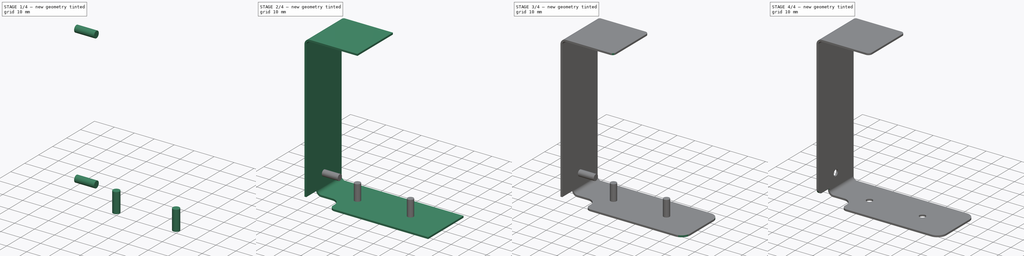
[diagram: build sequence overview — one tinted view per stage of 4, left to right]
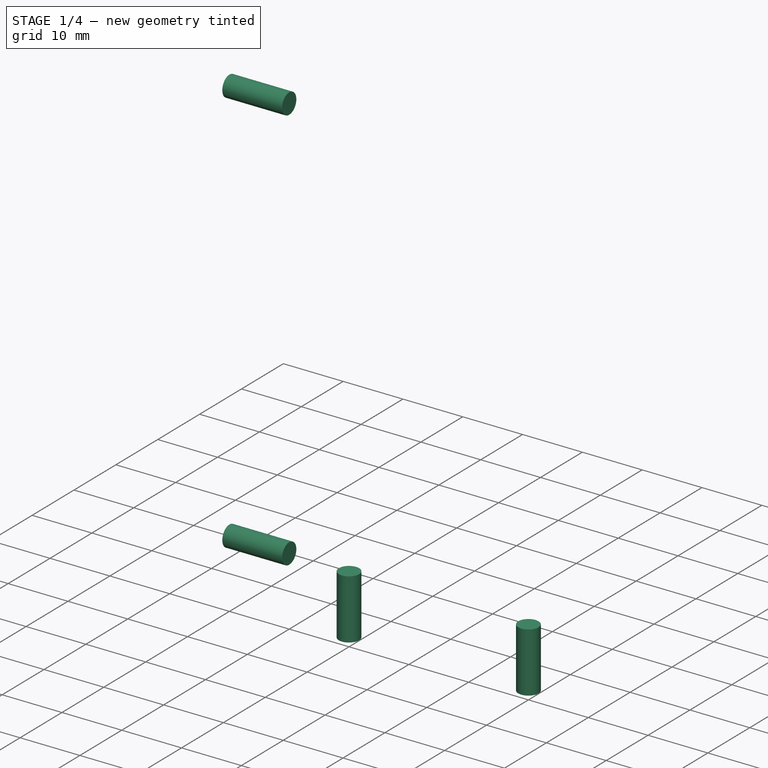
[diagram: stage 1 of 4 — iso view after this stage's code; geometry added in this stage tinted green]
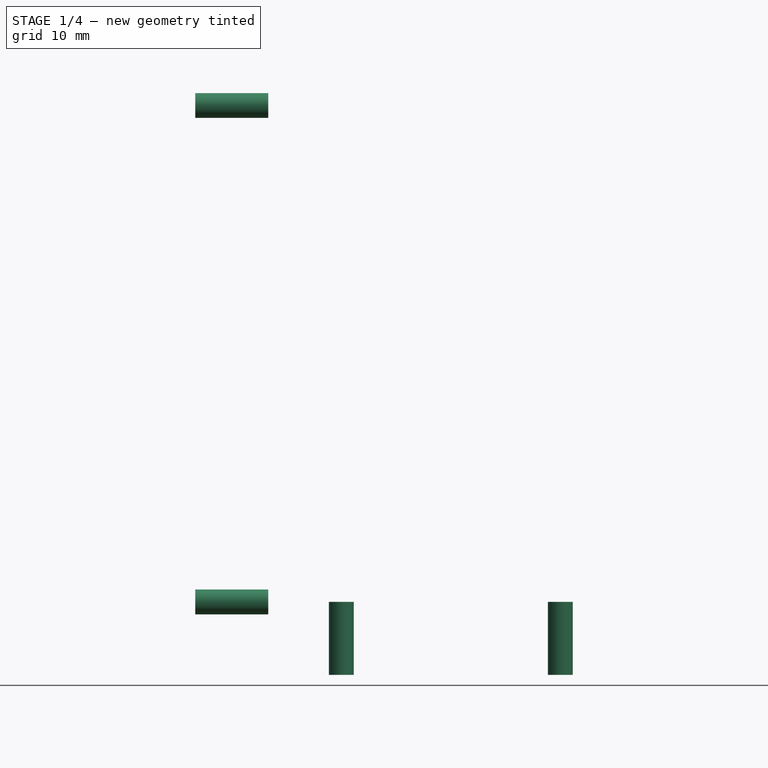
[diagram: stage 1 of 4 — front view after this stage's code; geometry added in this stage tinted green]
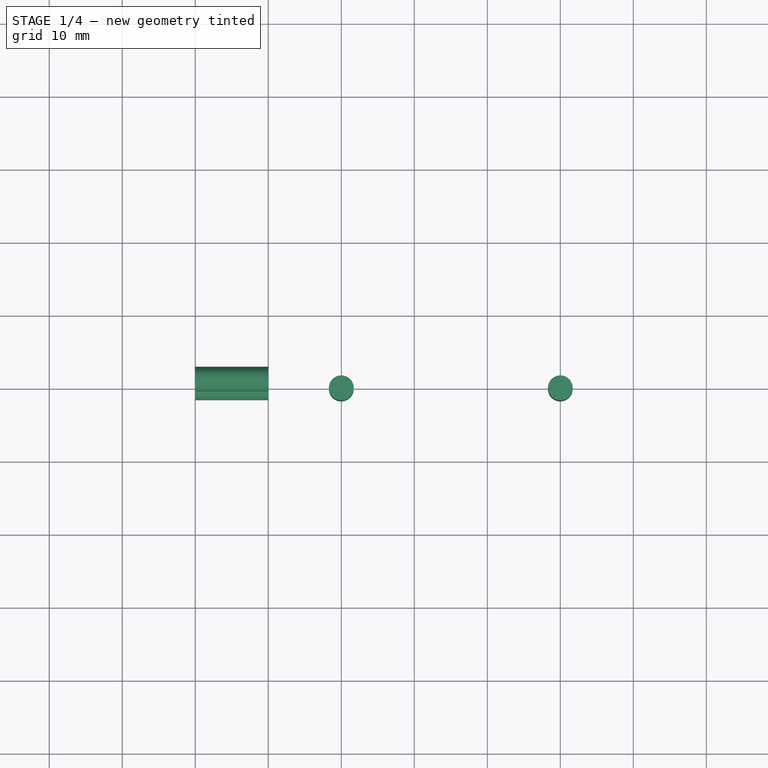
[diagram: stage 1 of 4 — top view after this stage's code; geometry added in this stage tinted green]
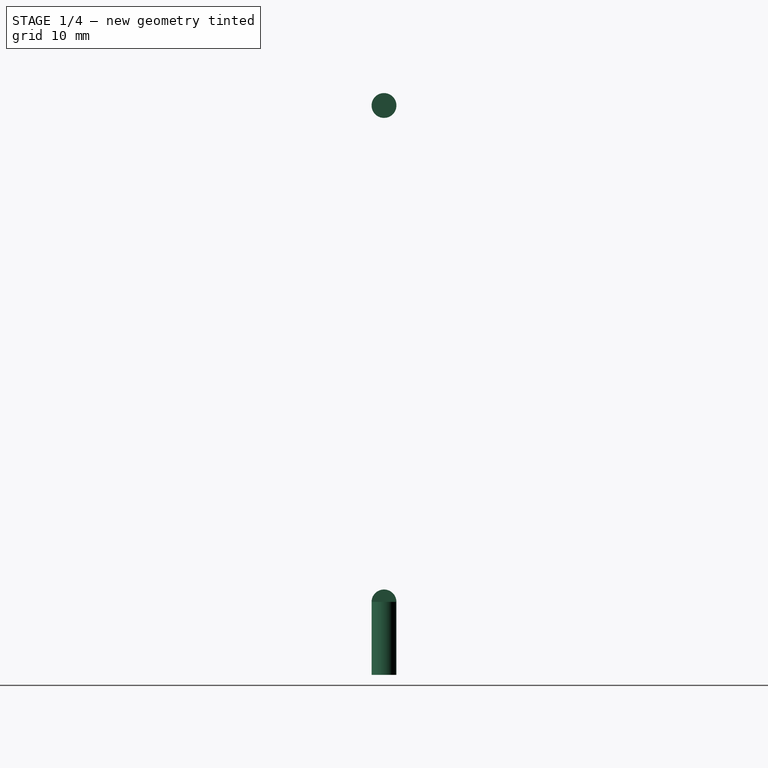
[diagram: stage 1 of 4 — right view after this stage's code; geometry added in this stage tinted green]
FCSTD DOCUMENT  (FreeCAD 1.1R38827 (Git))
Label: composit_stand3_bar_top_model
License: All rights reserved
LicenseURL: http://en.wikipedia.org/wiki/All_rights_reserved
objects: Sketcher::SketchObject×4, PartDesign::Pocket×4, PartDesign::SubShapeBinder×2, App::Link×2, Part::FeaturePython×2, PartDesign::Body×2, PartDesign::CoordinateSystem×2, PartDesign::FeaturePython×1, PartDesign::Mirrored×1, Part::Cylinder×1, Part::MultiFuse×1, PartDesign::Boolean×1
note: 36 computed .brp shape members not serialized (recipe doc carries the construction recipe); baked Part::Feature solids carry a one-line shape summary decoded from their .brp
EXTERNAL_REF file=composit_stand3_bar_top_main.FCStd obj=Sketch
EXTERNAL_REF file=composit_stand3_bar_top_main.FCStd obj=Join001
EXTERNAL_REF file=composit_stand3_bar_top_main.FCStd obj=Join

FEATURE [App::Link] Link  label="hor_holes"
  LinkedObject = -> <external composit_stand3_bar_top_main.FCStd>#Join001
FEATURE [App::Link] Link001  label="vert_holes"
  LinkedObject = -> <external composit_stand3_bar_top_main.FCStd>#Join
FEATURE [Part::Cylinder] Cylinder
  Angle = 360
  AttacherType = Attacher::AttachEngine3D
  AttachmentOffset = pos=(0,0,0) rot=(1,0,0;3.14159rad)
  FirstAngle = 0
  Height = 10
  Placement = pos=(0,0,0) rot=(1,0,0;3.14159rad)
  Radius = 1.7
  SecondAngle = 0
FEATURE [Part::FeaturePython] Join  # WARN: FeaturePython — macro-defined, semantics opaque (R4)
  ExposePlacement = false
  Interleave = false
  Links = -> [Link,Link001]
  MarkerShape = 1
  MarkerSize = 0
  NumElements = 4
  Type = lattice2JoinArrays.JoinArrays
  isLattice = 1
FEATURE [Part::FeaturePython] Populate  label="Populate Join with Cylinder"  # WARN: FeaturePython — macro-defined, semantics opaque (R4)
  Copying = 0
  ExposePlacement = false
  MarkerShape = 1
  MarkerSize = 0
  NumElements = 0
  Object = -> Cylinder
  OutputCompounding = 1
  PlacementsTo = -> Join
  Referencing = 0
  Type = lattice2PopulateCopies.LatticePopulateCopies
  isLattice = 0
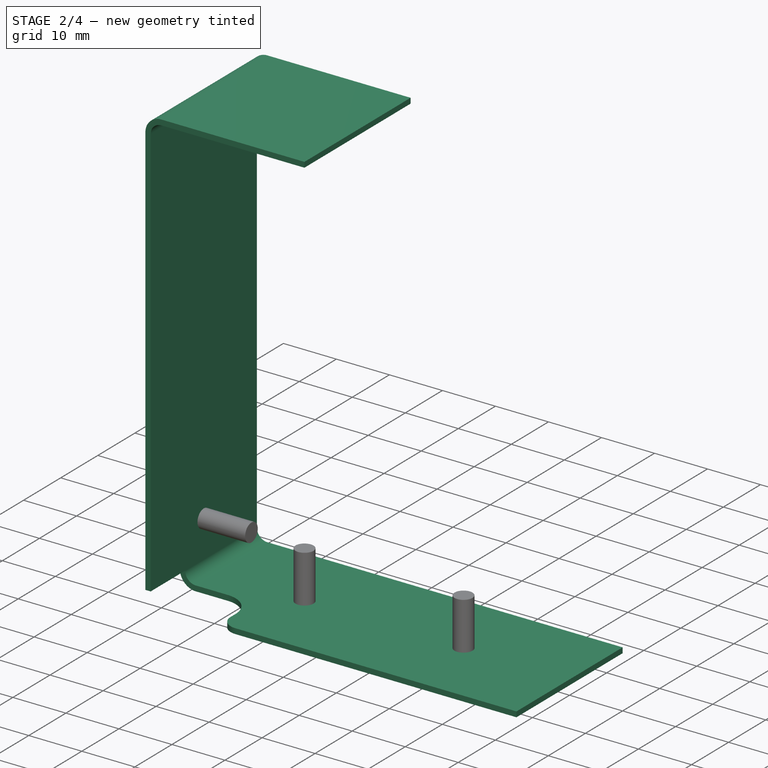
[diagram: stage 2 of 4 — iso view after this stage's code; geometry added in this stage tinted green]
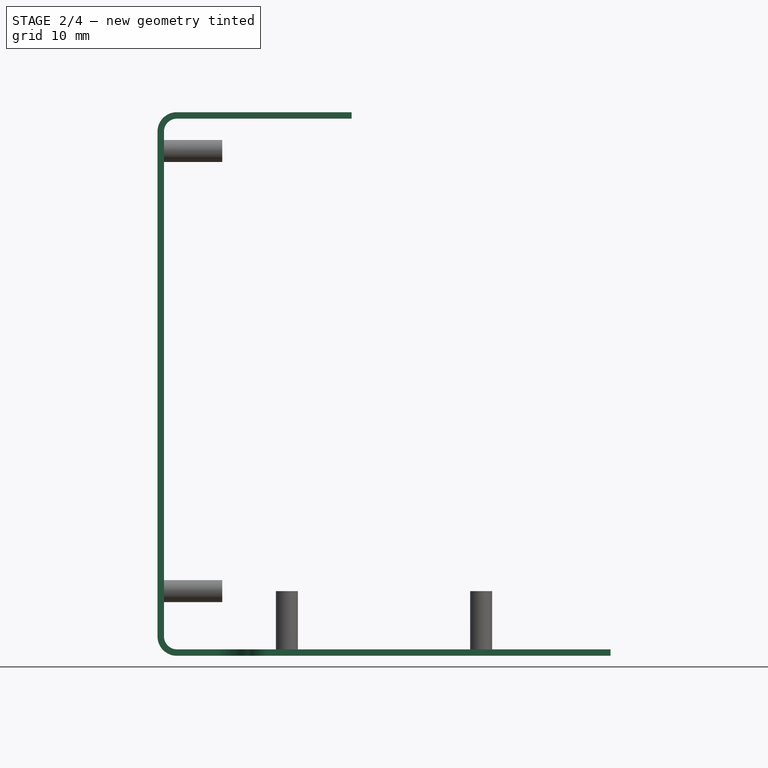
[diagram: stage 2 of 4 — front view after this stage's code; geometry added in this stage tinted green]
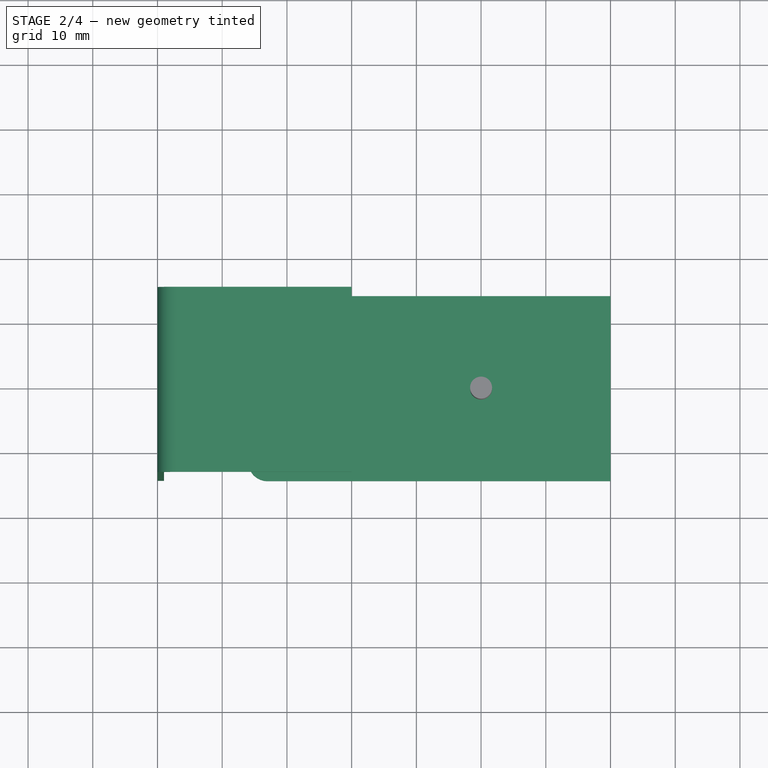
[diagram: stage 2 of 4 — top view after this stage's code; geometry added in this stage tinted green]
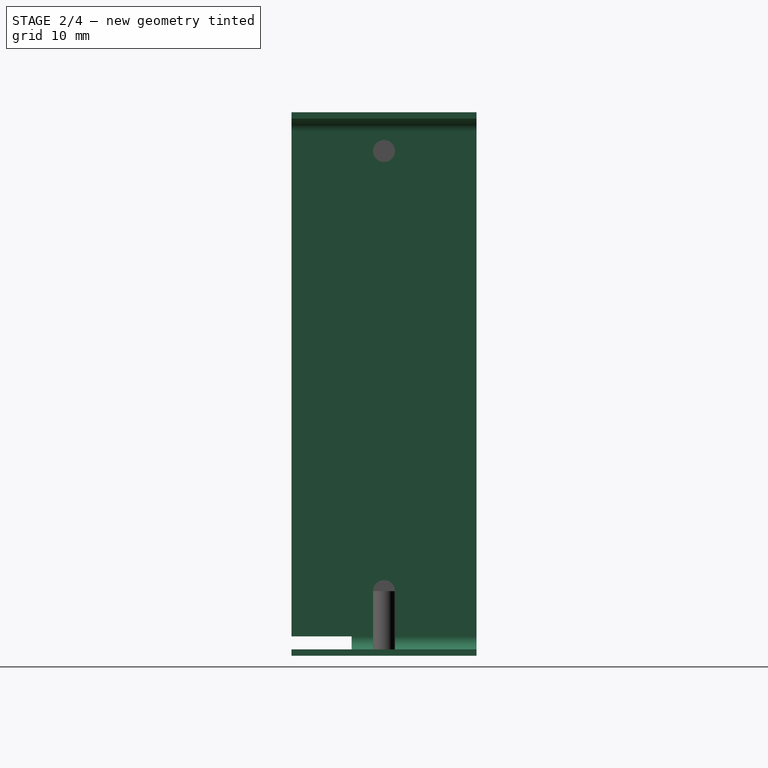
[diagram: stage 2 of 4 — right view after this stage's code; geometry added in this stage tinted green]
FEATURE [PartDesign::SubShapeBinder] Binder
  BindCopyOnChange = 0
  BindMode = 0
  ClaimChildren = true
  Fuse = false
  MakeFace = true
  OffsetFill = false
  OffsetIntersection = false
  OffsetJoinType = 0
  OffsetOpenResult = false
  PartialLoad = false
  Placement = pos=(0,0,0) rot=(1,0,0;1.5708rad)
  Relative = false
  Support = -> [<external composit_stand3_bar_top_main.FCStd>#Sketch]
  _Version = 2
FEATURE [PartDesign::SubShapeBinder] Binder001
  BindCopyOnChange = 0
  BindMode = 0
  ClaimChildren = true
  Context = -> Body [Binder001.]
  Fuse = false
  MakeFace = true
  OffsetFill = false
  OffsetIntersection = false
  OffsetJoinType = 0
  OffsetOpenResult = false
  PartialLoad = false
  Placement = pos=(0,0,0) rot=(1,0,0;1.5708rad)
  Relative = false
  Support = -> [Binder]
  _Version = 2
FEATURE [PartDesign::FeaturePython] BaseBend  # WARN: FeaturePython — macro-defined, semantics opaque (R4)
  BendSide = 0
  BendSketch = -> Binder001
  MidPlane = true
  Reverse = true
  Suppressed = false
  length = 28.6
  radius = 2
  thickness = 1
FEATURE [Sketcher::SketchObject] Sketch
  ArcFitTolerance = 0
  AttachmentOffset = pos=(0,-14.3,0) rot=(0,0,1;0rad)
  AttachmentSupport = -> [XY_Plane]
  FullyConstrained = true
  MakeInternals = false
  MapMode = 5
  Placement = pos=(0,-14.3,0) rot=(0,0,1;0rad)
  expr: .AttachmentOffset.Base.y = -<<BaseBend>>.length / 2
  sketch-geometry (7):
    g0: LineSegment StartX=0 StartY=0 StartZ=0 EndX=17 EndY=0 EndZ=0
    g1: LineSegment StartX=9 StartY=9.3 StartZ=0 EndX=0 EndY=9.3 EndZ=0
    g2: LineSegment StartX=0 StartY=9.3 StartZ=0 EndX=0 EndY=0 EndZ=0
    g3: ArcOfCircle CenterX=9 CenterY=4.3 CenterZ=0 NormalX=0 NormalY=0 NormalZ=1 AngleXU=0 Radius=5 StartAngle=0 EndAngle=1.5708
    g4: GeomPoint [constr] X=14 Y=9.3 Z=0
    g5: LineSegment StartX=14 StartY=3 StartZ=0 EndX=14 EndY=4.3 EndZ=0
    g6: ArcOfCircle CenterX=17 CenterY=3 CenterZ=0 NormalX=0 NormalY=0 NormalZ=1 AngleXU=0 Radius=3 StartAngle=3.14159 EndAngle=4.71239
  constraints (17):
    c: Coincident(g1,g2)
    c: Coincident(g2,g0)
    c: Horizontal(g0)
    c: Horizontal(g1)
    c: Vertical(g2)
    c: Coincident(g0,g-1)
    c: PointOnObject(g4,g1)
    c: Tangent(g1,g3) = -1.5708
    c: Radius(g3) = 5
    c: DistanceX(g4) = 14
    c: DistanceY(g4) = 9.3
    c: Vertical(g5)
    c: Tangent(g6,g5) = 1.5708
    c: Tangent(g6,g0) = -1.5708
    c: Radius(g6) = 3
    c: PointOnObject(g4,g5)
    c: Tangent(g5,g3) = -1.5708
FEATURE [PartDesign::Pocket] Pocket
  BaseFeature = -> BaseBend
  Direction = (0,0,-1)
  Length = 3
  Length2 = 5
  Profile = -> Sketch
  ReferenceAxis = -> Sketch [N_Axis]
  Reversed = true
  Suppressed = false
  Type = 0
  expr: Length = <<BaseBend>>.thickness + <<BaseBend>>.radius
FEATURE [Part::MultiFuse] Fusion
  Shapes = -> [Populate]
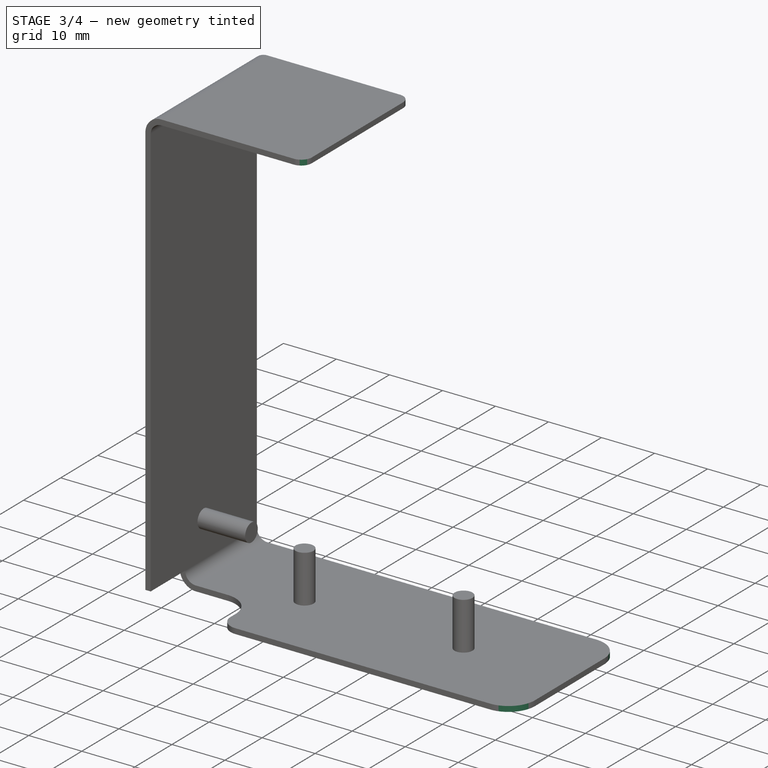
[diagram: stage 3 of 4 — iso view after this stage's code; geometry added in this stage tinted green]
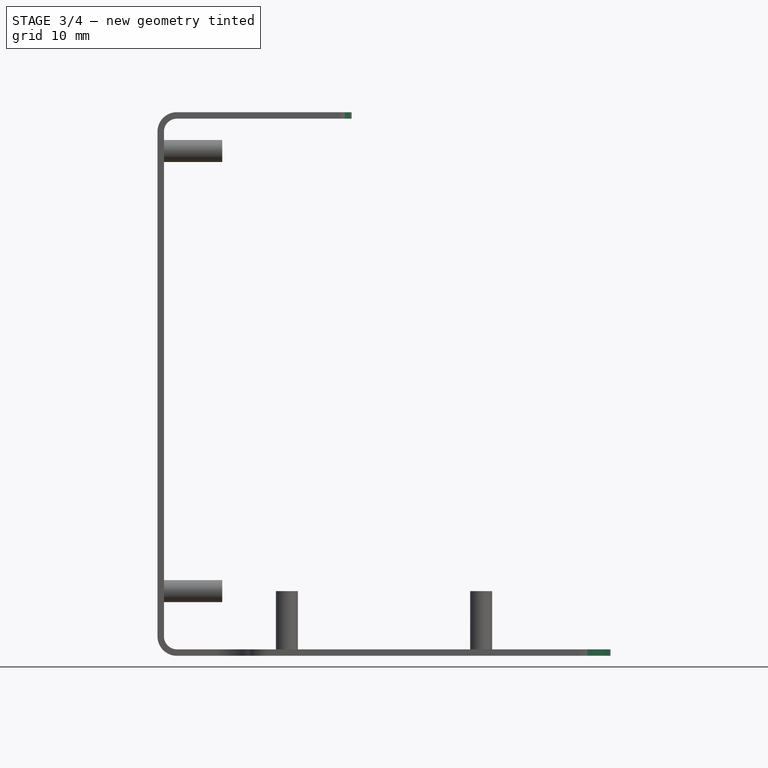
[diagram: stage 3 of 4 — front view after this stage's code; geometry added in this stage tinted green]
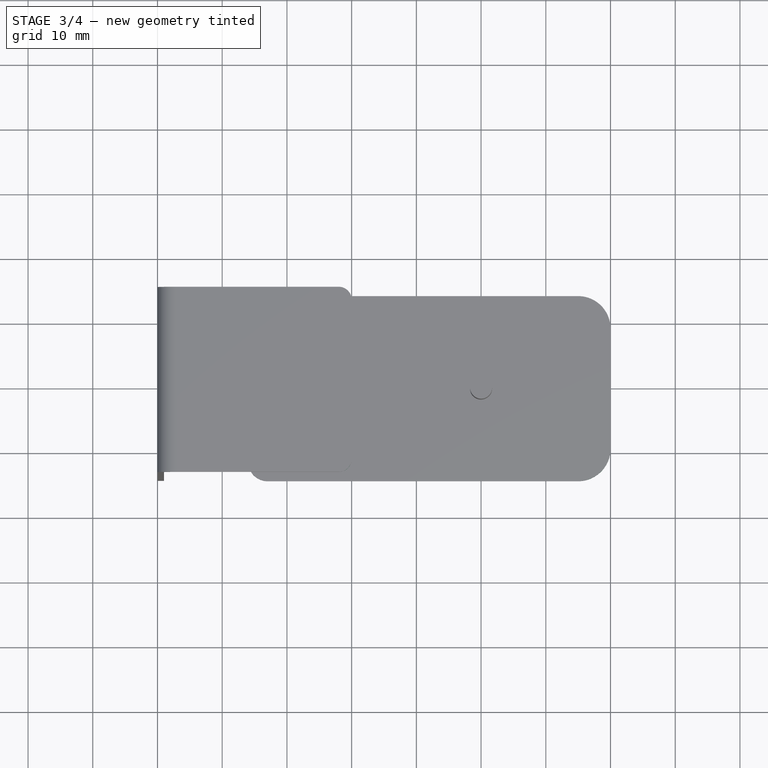
[diagram: stage 3 of 4 — top view after this stage's code; geometry added in this stage tinted green]
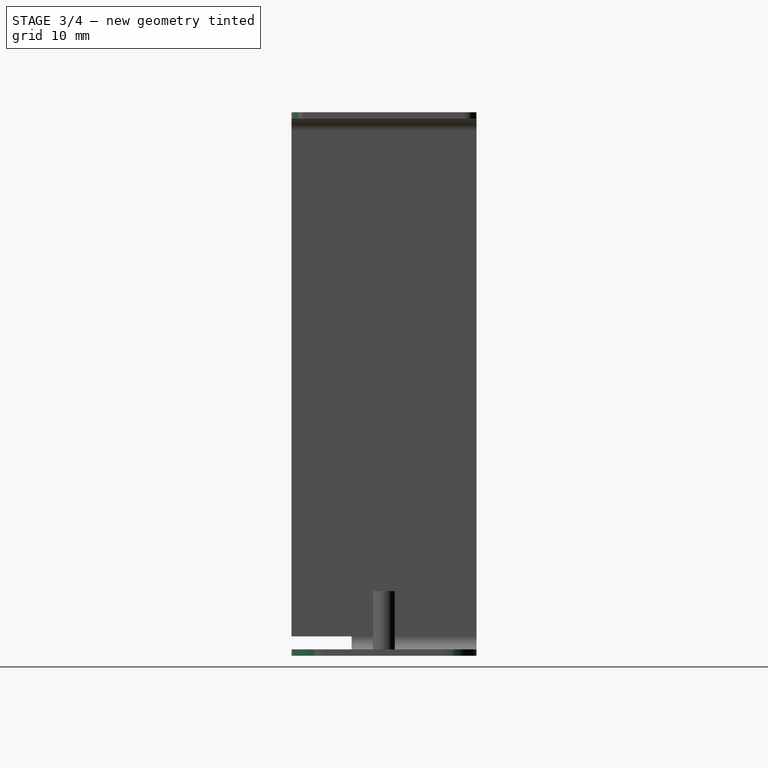
[diagram: stage 3 of 4 — right view after this stage's code; geometry added in this stage tinted green]
FEATURE [Sketcher::SketchObject] Sketch001
  ArcFitTolerance = 0
  AttachmentOffset = pos=(14.3,0,0) rot=(1,0,0;-1.5708rad)
  AttachmentSupport = -> [Binder]
  FullyConstrained = true
  MakeInternals = false
  MapMode = 7
  Placement = pos=(70,14.3,0) rot=(0,0,-1;4.71239rad)
  expr: .AttachmentOffset.Base.x = <<BaseBend>>.length / 2
  sketch-geometry (3):
    g0: ArcOfCircle CenterX=-5 CenterY=5 CenterZ=0 NormalX=0 NormalY=0 NormalZ=1 AngleXU=0 Radius=5 StartAngle=4.71239 EndAngle=6.28319
    g1: LineSegment StartX=-5 StartY=1.981e-13 StartZ=0 EndX=-1.981e-13 EndY=1.981e-13 EndZ=0
    g2: LineSegment StartX=-1.981e-13 StartY=1.981e-13 StartZ=0 EndX=-1.981e-13 EndY=5 EndZ=0
  constraints (8):
    c: PointOnObject(g0,g-2)
    c: PointOnObject(g0,g-1)
    c: Coincident(g1,g2)
    c: Vertical(g2)
    c: Tangent(g2,g0) = -1.5708
    c: Tangent(g0,g1) = -1.5708
    c: Horizontal(g1)
    c: Radius(g0) = 5
FEATURE [Sketcher::SketchObject] Sketch002
  ArcFitTolerance = 0
  AttachmentOffset = pos=(-14.3,0,0) rot=(-0.57735,0.57735,0.57735;2.0944rad)
  AttachmentSupport = -> [Binder]
  FullyConstrained = true
  MakeInternals = false
  MapMode = 7
  Placement = pos=(30,14.3,84) rot=(0,0,1;0rad)
  expr: .AttachmentOffset.Base.x = -<<BaseBend>>.length / 2
  sketch-geometry (3):
    g0: ArcOfCircle CenterX=-2 CenterY=-2 CenterZ=0 NormalX=0 NormalY=0 NormalZ=1 AngleXU=0 Radius=2 StartAngle=0 EndAngle=1.5708
    g1: LineSegment StartX=0 StartY=-2 StartZ=0 EndX=0 EndY=0 EndZ=0
    g2: LineSegment StartX=0 StartY=0 StartZ=0 EndX=-2 EndY=0 EndZ=0
  constraints (7):
    c: PointOnObject(g0,g-2)
    c: PointOnObject(g0,g-1)
    c: Tangent(g1,g0) = -1.5708
    c: Coincident(g1,g-1)
    c: Coincident(g2,g1)
    c: Tangent(g2,g0) = -1.5708
    c: Radius(g0) = 2
FEATURE [PartDesign::Pocket] Pocket001
  BaseFeature = -> Pocket
  Direction = (-1e-16,3e-16,-1)
  Length = 5
  Length2 = 5
  Profile = -> Sketch002
  ReferenceAxis = -> Sketch002 [N_Axis]
  Suppressed = false
  Type = 0
FEATURE [PartDesign::Pocket] Pocket002
  BaseFeature = -> Pocket001
  Direction = (2e-16,0,-1)
  Length = 5
  Length2 = 5
  Profile = -> Sketch001
  ReferenceAxis = -> Sketch001 [N_Axis]
  Reversed = true
  Suppressed = false
  Type = 0
FEATURE [PartDesign::Mirrored] Mirrored
  BaseFeature = -> Pocket002
  MirrorPlane = -> XZ_Plane
  Originals = -> [Pocket001,Pocket002]
  Suppressed = false
  TransformMode = 0
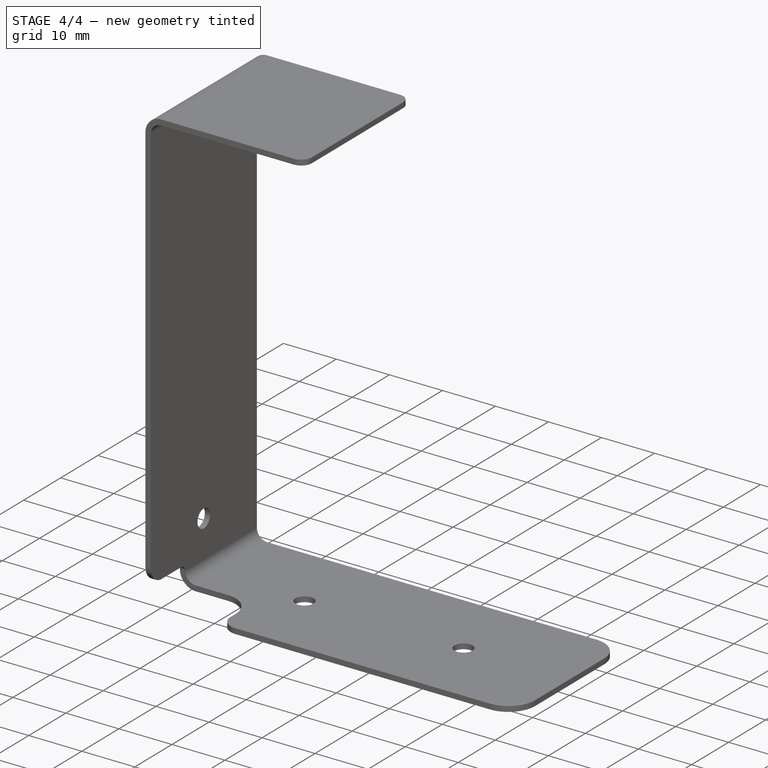
[diagram: stage 4 of 4 — iso view after this stage's code; geometry added in this stage tinted green]
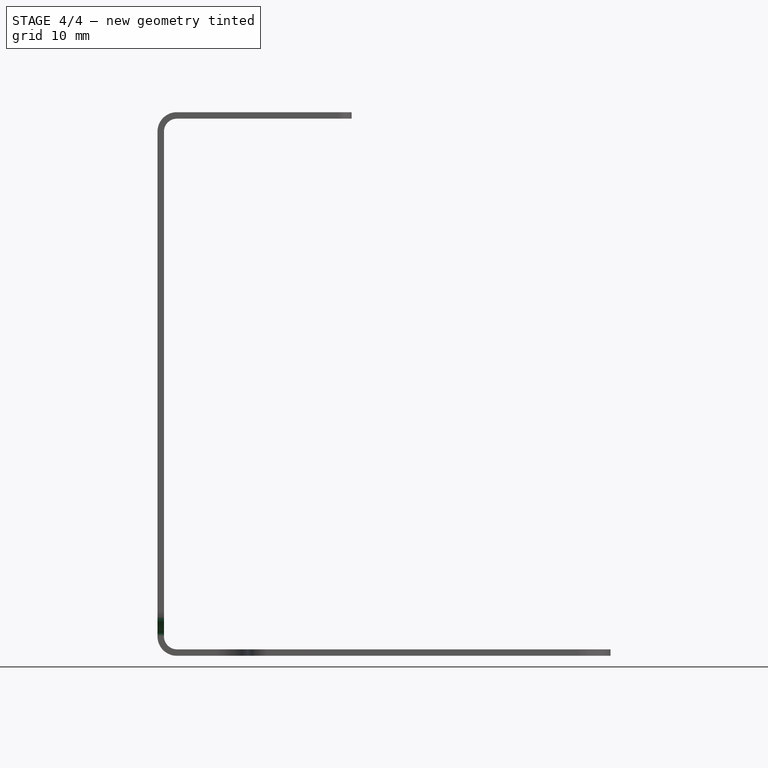
[diagram: stage 4 of 4 — front view after this stage's code; geometry added in this stage tinted green]
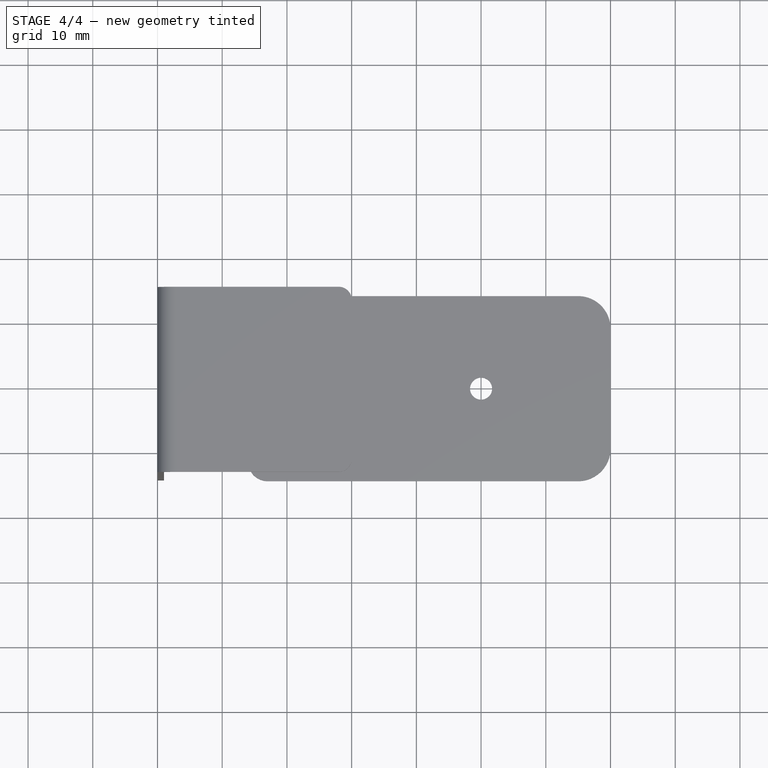
[diagram: stage 4 of 4 — top view after this stage's code; geometry added in this stage tinted green]
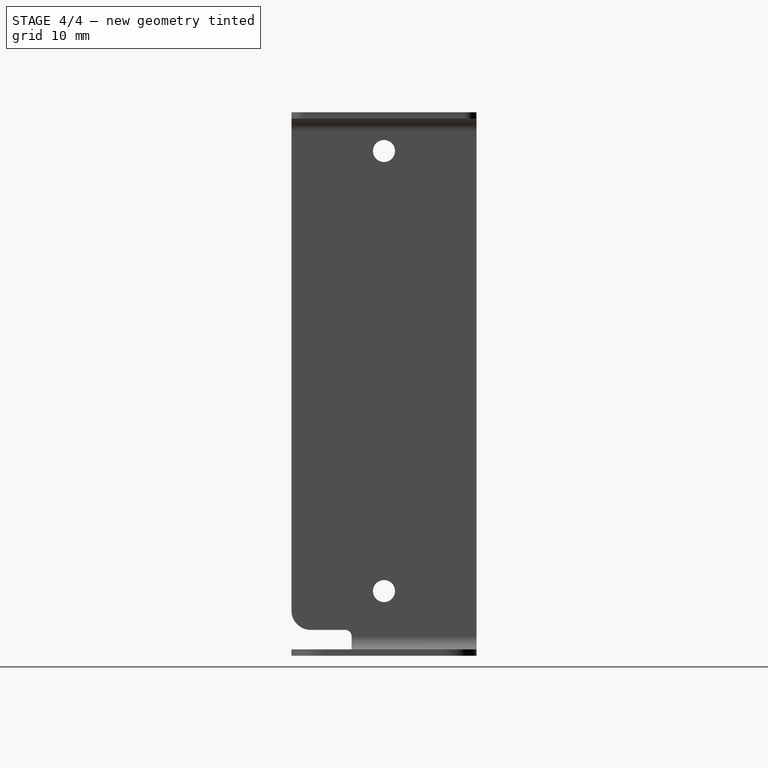
[diagram: stage 4 of 4 — right view after this stage's code; geometry added in this stage tinted green]
FEATURE [Sketcher::SketchObject] Sketch003
  ArcFitTolerance = 0
  AttachmentOffset = pos=(0,3,0) rot=(0,0,1;0rad)
  AttachmentSupport = -> [YZ_Plane]
  ExternalGeometry = -> [Sketch]
  FullyConstrained = true
  MakeInternals = false
  MapMode = 5
  Placement = pos=(0,0,3) rot=(0.57735,0.57735,0.57735;2.0944rad)
  expr: .AttachmentOffset.Base.y = <<BaseBend>>.thickness + <<BaseBend>>.radius
  sketch-geometry (5):
    g0: LineSegment StartX=-14.3 StartY=4 StartZ=0 EndX=-14.3 EndY=0 EndZ=0
    g1: LineSegment StartX=-14.3 StartY=0 StartZ=0 EndX=-5 EndY=0 EndZ=0
    g2: LineSegment StartX=-6 StartY=1 StartZ=0 EndX=-11.3 EndY=1 EndZ=0
    g3: ArcOfCircle CenterX=-11.3 CenterY=4 CenterZ=0 NormalX=0 NormalY=0 NormalZ=1 AngleXU=0 Radius=3 StartAngle=3.14159 EndAngle=4.71239
    g4: ArcOfCircle CenterX=-6 CenterY=0 CenterZ=0 NormalX=0 NormalY=0 NormalZ=1 AngleXU=0 Radius=1 StartAngle=0 EndAngle=1.5708
  constraints (14):
    c: Vertical(g0)
    c: Coincident(g0,g1)
    c: Horizontal(g1)
    c: Horizontal(g2)
    c: PointOnObject(g4,g1)
    c: Coincident(g4,g1)
    c: Vertical(g-3,g1)
    c: Vertical(g-3,g0)
    c: Tangent(g3,g0) = -1.5708
    c: Tangent(g3,g2) = 1.5708
    c: Tangent(g4,g2) = -1.5708
    c: PointOnObject(g0,g-1)
    c: Radius(g3) = 3
    c: Radius(g4) = 1
FEATURE [PartDesign::Pocket] Pocket003
  BaseFeature = -> Mirrored
  Direction = (-1,0,0)
  Length = 5
  Length2 = 5
  Profile = -> Sketch003
  ReferenceAxis = -> Sketch003 [N_Axis]
  Reversed = true
  Suppressed = false
  Type = 0
FEATURE [PartDesign::Body] Body001
  AllowCompound = false
  Origin = -> Origin001
FEATURE [PartDesign::Boolean] Boolean
  BaseFeature = -> Pocket003
  Group = -> [Fusion]
  Suppressed = false
  Type = 1
  UsePlacement = true
FEATURE [PartDesign::CoordinateSystem] Local_CS  label="base_LCS"
  AttacherType = Attacher::AttachEngine3D
  AttachmentSupport = -> [XY_Plane]
  MapMode = 5
FEATURE [PartDesign::CoordinateSystem] Local_CS001  label="top_LCS"
  AttacherType = Attacher::AttachEngine3D
  AttachmentOffset = pos=(0,0,84) rot=(0,0,1;0rad)
  AttachmentSupport = -> [XY_Plane]
  MapMode = 5
  Placement = pos=(0,0,84) rot=(0,0,1;0rad)
FEATURE [PartDesign::Body] Body  label="top"
  AllowCompound = false
  Group = -> [Binder001,BaseBend,Sketch,Pocket,Sketch001,Sketch002,Pocket001,Pocket002,Mirrored,Sketch003,Pocket003,Boolean,Local_CS,Local_CS001]
  Origin = -> Origin
  Tip = -> Boolean
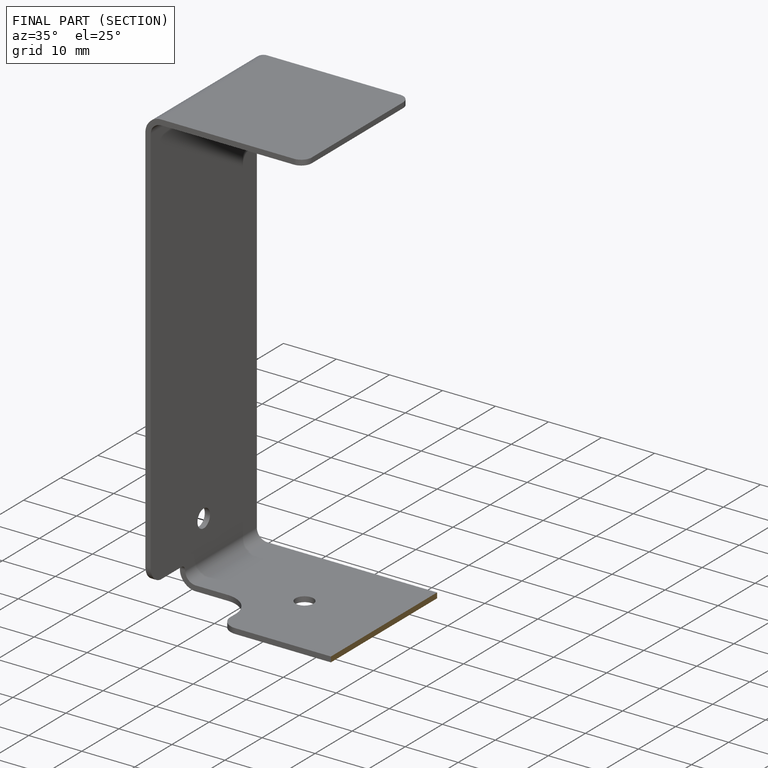
[diagram: finished part — half-section view (interior)]
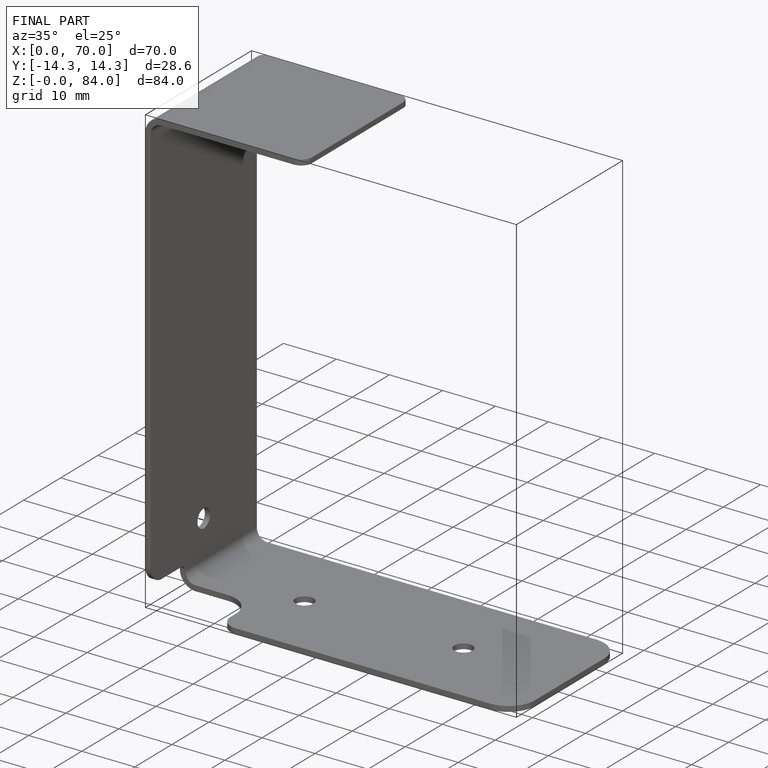
[diagram: finished part — iso view with bounding-box wireframe]
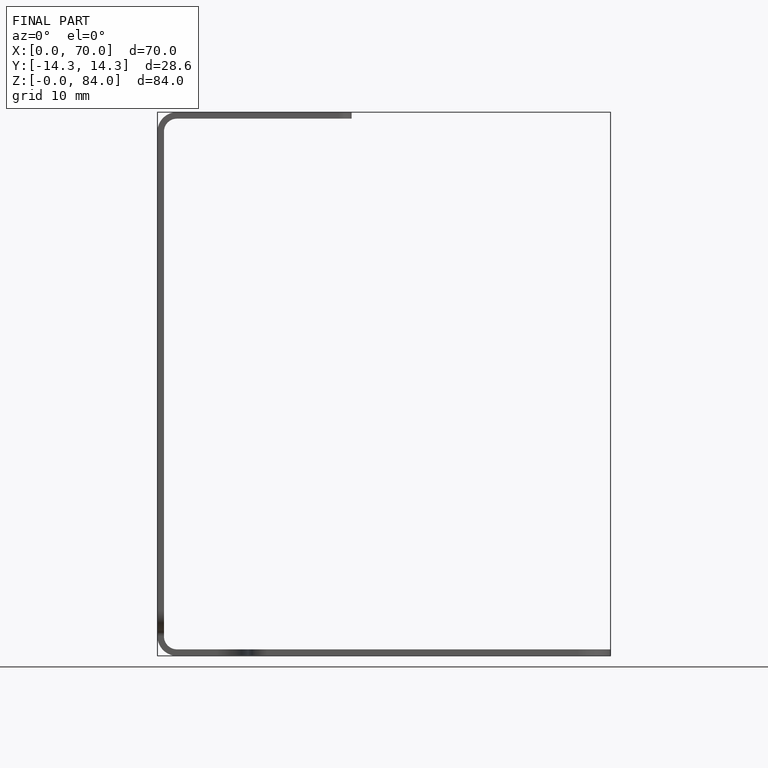
[diagram: finished part — front view with bounding-box wireframe]
